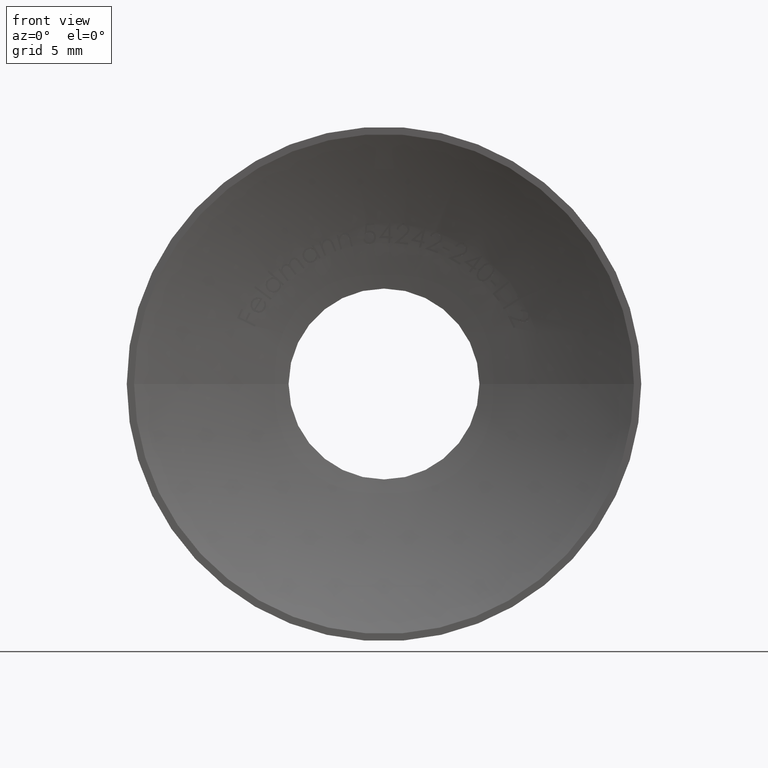
[diagram: clean part render]
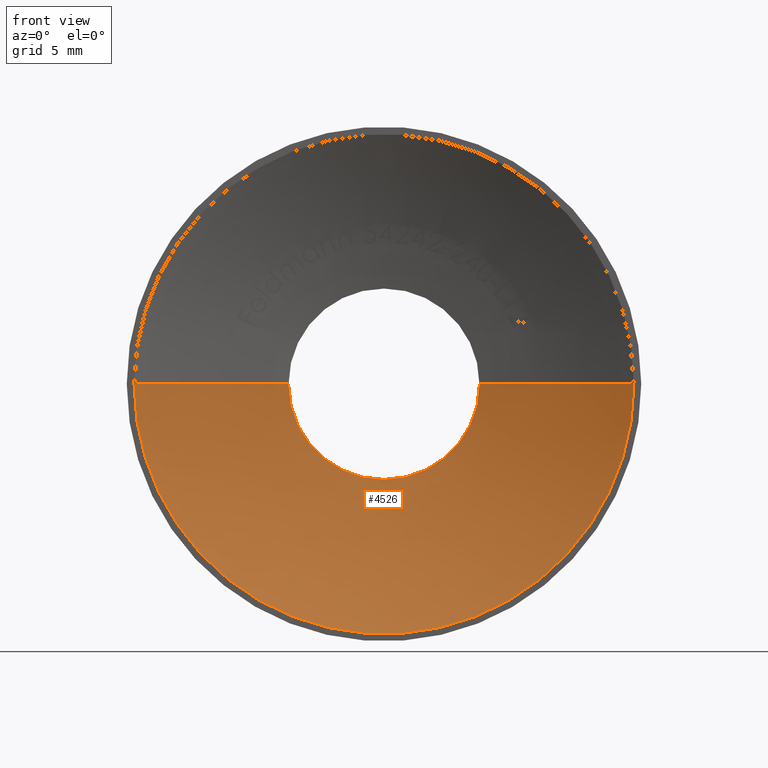
[diagram: same view with one face highlighted and labeled with its STEP entity id]
A machine part, front view. The second image highlights one B-rep face of the part: STEP entity #4526.
In plain terms, the highlighted spherical surface has radius 35.4903 mm.
Its self-contained STEP definition (entity closure, byte-faithful):
#503 = VERTEX_POINT ( 'NONE', #5496 ) ;
#524 = AXIS2_PLACEMENT_3D ( 'NONE', #3706, #6892, #1214 ) ;
#569 = DIRECTION ( 'NONE',  ( 0.0000000000000000000, 1.000000000000000000, 0.0000000000000000000 ) ) ;
#882 = CIRCLE ( 'NONE', #9232, 35.49031249999995900 ) ;
#1214 = DIRECTION ( 'NONE',  ( 1.000000000000000000, 0.0000000000000000000, 0.0000000000000000000 ) ) ;
#1350 = CIRCLE ( 'NONE', #10180, 6.250000000000000000 ) ;
#1476 = CARTESIAN_POINT ( 'NONE',  ( -2.334441550613476100E-014, 9.540979117872439000E-014, 0.0000000000000000000 ) ) ;
#1607 = CARTESIAN_POINT ( 'NONE',  ( 1.167220775306751800E-014, -31.49031249999995200, 0.0000000000000000000 ) ) ;
#2109 = EDGE_CURVE ( 'NONE', #7706, #5147, #1350, .T. ) ;
#2115 = ORIENTED_EDGE ( 'NONE', *, *, #2109, .T. ) ;
#2436 = DIRECTION ( 'NONE',  ( 0.0000000000000000000, 0.0000000000000000000, -1.000000000000000000 ) ) ;
#2935 = EDGE_CURVE ( 'NONE', #8513, #503, #882, .T. ) ;
#3153 = CARTESIAN_POINT ( 'NONE',  ( -6.250000000000000900, 3.445339509768711800, 0.0000000000000000000 ) ) ;
#3172 = AXIS2_PLACEMENT_3D ( 'NONE', #1476, #9141, #6318 ) ;
#3376 = CARTESIAN_POINT ( 'NONE',  ( 0.0000000000000000000, 3.445339509768711800, 0.0000000000000000000 ) ) ;
#3649 = CIRCLE ( 'NONE', #524, 35.49031249999995900 ) ;
#3706 = CARTESIAN_POINT ( 'NONE',  ( 1.167220775306751800E-014, -31.49031249999995200, 0.0000000000000000000 ) ) ;
#3816 = ORIENTED_EDGE ( 'NONE', *, *, #6907, .T. ) ;
#3913 = CIRCLE ( 'NONE', #3172, 16.36833833961167200 ) ;
#3934 = CARTESIAN_POINT ( 'NONE',  ( 0.0000000000000000000, 3.445339509768711800, -6.250000000000000000 ) ) ;
#4059 = AXIS2_PLACEMENT_3D ( 'NONE', #1607, #10047, #6380 ) ;
#4320 = DIRECTION ( 'NONE',  ( -8.881784197001254300E-016, 0.0000000000000000000, -1.000000000000000000 ) ) ;
#4526 = ADVANCED_FACE ( 'NONE', ( #10663 ), #6208, .F. ) ;
#5147 = VERTEX_POINT ( 'NONE', #3153 ) ;
#5470 = CARTESIAN_POINT ( 'NONE',  ( 1.167220775306751800E-014, -31.49031249999995200, 0.0000000000000000000 ) ) ;
#5496 = CARTESIAN_POINT ( 'NONE',  ( 16.36833833961164700, -5.876582875017628900E-017, -2.004543315496607100E-015 ) ) ;
#6119 = VERTEX_POINT ( 'NONE', #7047 ) ;
#6208 = SPHERICAL_SURFACE ( 'NONE', #4059, 35.49031249999995900 ) ;
#6299 = ORIENTED_EDGE ( 'NONE', *, *, #2935, .F. ) ;
#6318 = DIRECTION ( 'NONE',  ( 1.000000000000000000, -5.836103876533815000E-015, 0.0000000000000000000 ) ) ;
#6380 = DIRECTION ( 'NONE',  ( -1.000000000000000000, 5.865454611514538600E-015, 0.0000000000000000000 ) ) ;
#6541 = ORIENTED_EDGE ( 'NONE', *, *, #8184, .T. ) ;
#6892 = DIRECTION ( 'NONE',  ( 0.0000000000000000000, -0.0000000000000000000, 1.000000000000000000 ) ) ;
#6907 = EDGE_CURVE ( 'NONE', #6119, #503, #3913, .T. ) ;
#7047 = CARTESIAN_POINT ( 'NONE',  ( -16.36833833961147600, 1.926130716621757600E-013, 0.0000000000000000000 ) ) ;
#7277 = ORIENTED_EDGE ( 'NONE', *, *, #11658, .T. ) ;
#7706 = VERTEX_POINT ( 'NONE', #3934 ) ;
#8137 = DIRECTION ( 'NONE',  ( 0.0000000000000000000, 1.000000000000000000, 0.0000000000000000000 ) ) ;
#8184 = EDGE_CURVE ( 'NONE', #5147, #6119, #3649, .T. ) ;
#8513 = VERTEX_POINT ( 'NONE', #10777 ) ;
#9141 = DIRECTION ( 'NONE',  ( -5.836103876533815000E-015, -1.000000000000000000, -0.0000000000000000000 ) ) ;
#9232 = AXIS2_PLACEMENT_3D ( 'NONE', #5470, #12103, #11122 ) ;
#9852 = AXIS2_PLACEMENT_3D ( 'NONE', #10024, #569, #4320 ) ;
#10024 = CARTESIAN_POINT ( 'NONE',  ( 0.0000000000000000000, 3.445339509768711800, 0.0000000000000000000 ) ) ;
#10047 = DIRECTION ( 'NONE',  ( 0.0000000000000000000, 0.0000000000000000000, -1.000000000000000000 ) ) ;
#10180 = AXIS2_PLACEMENT_3D ( 'NONE', #3376, #8137, #2436 ) ;
#10379 = CIRCLE ( 'NONE', #9852, 6.250000000000000000 ) ;
#10663 = FACE_OUTER_BOUND ( 'NONE', #11785, .T. ) ;
#10777 = CARTESIAN_POINT ( 'NONE',  ( 6.250000000000000000, 3.445339509768711800, -1.384973782481827000E-015 ) ) ;
#11122 = DIRECTION ( 'NONE',  ( -1.000000000000000000, 0.0000000000000000000, 1.224646799147353500E-016 ) ) ;
#11658 = EDGE_CURVE ( 'NONE', #8513, #7706, #10379, .T. ) ;
#11785 = EDGE_LOOP ( 'NONE', ( #6299, #7277, #2115, #6541, #3816 ) ) ;
#12103 = DIRECTION ( 'NONE',  ( -1.224646799147353200E-016, 7.147165931888596700E-031, -1.000000000000000000 ) ) ;